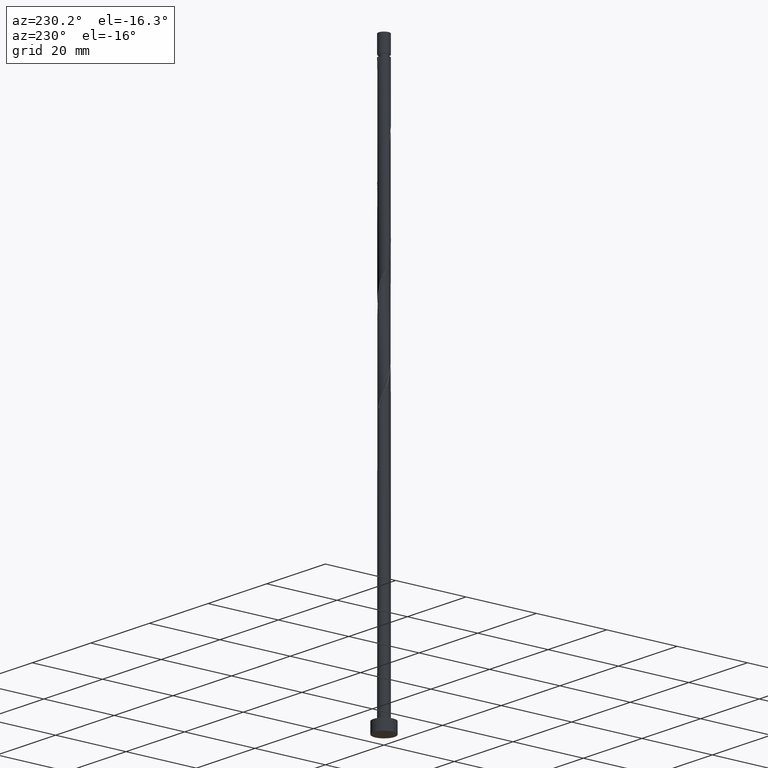
[diagram: clean part render]
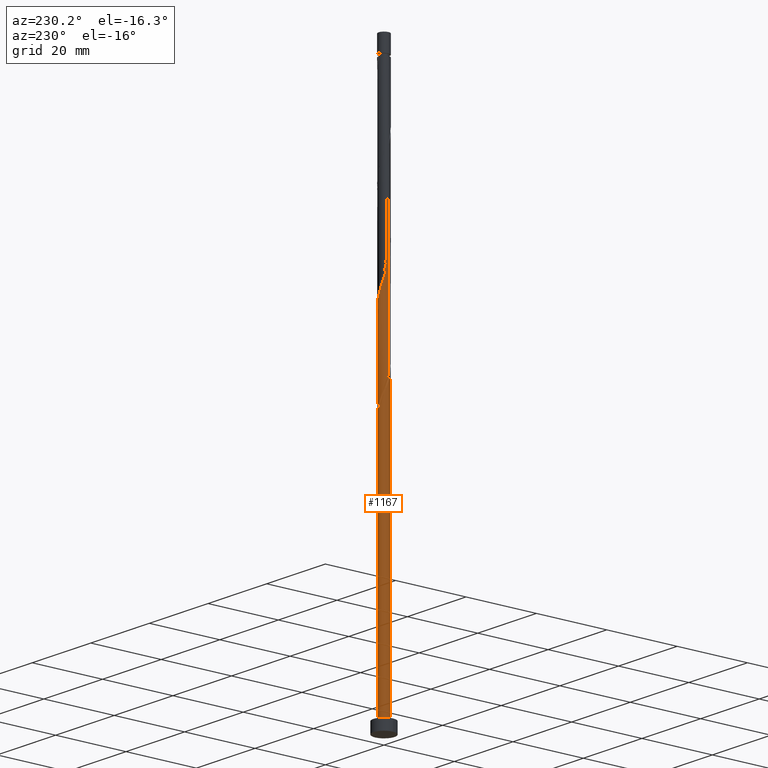
[diagram: same view with one face highlighted and labeled with its STEP entity id]
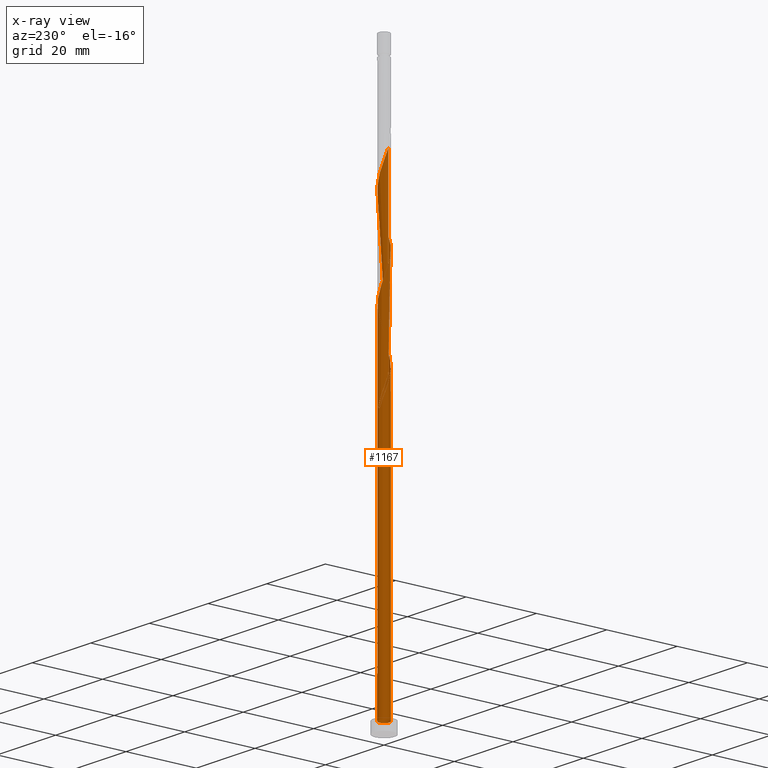
[diagram: x-ray of the same camera — body ghosted, the highlighted face saturated]
A machine part, auxiliary view. The second image highlights one B-rep face of the part: STEP entity #1167.
The next image is the same camera in x-ray: the body ghosted, the highlighted face saturated — about 0% of this face is hidden behind the body in this view.
In plain terms, the highlighted cylindrical surface (bore or boss wall) has radius 1.5 mm, axis along (-0, -0, -1).
Its self-contained STEP definition (entity closure, byte-faithful):
#9 = CARTESIAN_POINT ( 'NONE',  ( -1.045853010636306202, 1.075263446855226235, 129.7995311328476191 ) ) ;
#18 = CARTESIAN_POINT ( 'NONE',  ( 1.200452554620305756, -0.9248924852164310817, 117.0722584055748570 ) ) ;
#33 = CARTESIAN_POINT ( 'NONE',  ( -1.200452554620305978, 0.9248924852164310817, 130.4055917389081856 ) ) ;
#40 = CARTESIAN_POINT ( 'NONE',  ( -1.045853010636306202, 1.075263446855226235, 103.1328644661809477 ) ) ;
#67 = CARTESIAN_POINT ( 'NONE',  ( -0.7446362021362263883, -1.319859602977673019, 84.34498567830213744 ) ) ;
#74 = ORIENTED_EDGE ( 'NONE', *, *, #141, .F. ) ;
#75 = CARTESIAN_POINT ( 'NONE',  ( -1.213159217434436110, -0.8821817914431666630, 82.52680386012033864 ) ) ;
#80 = CARTESIAN_POINT ( 'NONE',  ( 0.2984962311319869221, 1.469999999999999751, 74.04195537527185422 ) ) ;
#82 = CARTESIAN_POINT ( 'NONE',  ( 0.8912534666523075355, -1.225634408494020722, 89.19347052678701004 ) ) ;
#90 = CARTESIAN_POINT ( 'NONE',  ( 1.461158848907852859, -0.3391383467823813058, 92.22377355709002700 ) ) ;
#99 = VERTEX_POINT ( 'NONE', #395 ) ;
#110 = ORIENTED_EDGE ( 'NONE', *, *, #1036, .F. ) ;
#117 = LINE ( 'NONE', #428, #1321 ) ;
#123 = VERTEX_POINT ( 'NONE', #167 ) ;
#129 = CARTESIAN_POINT ( 'NONE',  ( 1.412398115979206503, -0.5492212733340109398, 118.2843796176960893 ) ) ;
#141 = EDGE_CURVE ( 'NONE', #123, #99, #678, .T. ) ;
#145 = CARTESIAN_POINT ( 'NONE',  ( 1.045853010636306202, -1.075263446855226235, 116.4661977995142621 ) ) ;
#153 = EDGE_LOOP ( 'NONE', ( #1318, #510, #1326, #381, #1444, #110, #74, #1538, #1129 ) ) ;
#167 = CARTESIAN_POINT ( 'NONE',  ( -0.2984962311319864225, 1.470000000000002416, 74.04195537527185422 ) ) ;
#180 = CARTESIAN_POINT ( 'NONE',  ( -0.9154784133017651593, 1.188233678523918035, 77.67831901163546604 ) ) ;
#183 = CARTESIAN_POINT ( 'NONE',  ( 0.3426257832300796946, 1.476184276359228109, 98.89044022375669840 ) ) ;
#190 = CARTESIAN_POINT ( 'NONE',  ( 1.509919581836498992, -0.1290554202307514498, 92.82983416315063607 ) ) ;
#194 = EDGE_CURVE ( 'NONE', #862, #279, #494, .T. ) ;
#230 = CARTESIAN_POINT ( 'NONE',  ( -1.412557076706239645, -0.5046607821568167562, 81.31468264799914891 ) ) ;
#234 = CARTESIAN_POINT ( 'NONE',  ( -1.500000000000000222, 0.000000000000000000, 159.5000000000000000 ) ) ;
#240 = CARTESIAN_POINT ( 'NONE',  ( -0.5098503233045978966, 1.427082721123916098, 127.9813493146658203 ) ) ;
#247 = CARTESIAN_POINT ( 'NONE',  ( 1.497517962423707383, 0.08625515763335768471, 120.1025614358779166 ) ) ;
#255 = CARTESIAN_POINT ( 'NONE',  ( 1.412557076706239645, 0.5046607821568165342, 121.3146826479991347 ) ) ;
#262 = CARTESIAN_POINT ( 'NONE',  ( 1.485116343010915330, 0.3015657354974667359, 120.7086220419385114 ) ) ;
#279 = VERTEX_POINT ( 'NONE', #80 ) ;
#297 = CARTESIAN_POINT ( 'NONE',  ( 1.213159217434436110, 0.8821817914431661078, 95.86013719345366724 ) ) ;
#298 = CARTESIAN_POINT ( 'NONE',  ( 0.000000000000000000, 0.000000000000000000, 74.04195537527185422 ) ) ;
#301 = CARTESIAN_POINT ( 'NONE',  ( -1.497517962423704718, 0.08625515763335817043, 81.31468264799907786 ) ) ;
#304 = CARTESIAN_POINT ( 'NONE',  ( 0.5436309926831531802, 1.398021939668451008, 98.28437961769610354 ) ) ;
#312 = CARTESIAN_POINT ( 'NONE',  ( -0.1277418221353519845, -1.494550777617658754, 86.16316749648400730 ) ) ;
#320 = CARTESIAN_POINT ( 'NONE',  ( 1.485116343010915330, 0.3015657354974667359, 94.04195537527184001 ) ) ;
#329 = DIRECTION ( 'NONE',  ( -0.000000000000000000, -0.000000000000000000, -1.000000000000000000 ) ) ;
#356 = CARTESIAN_POINT ( 'NONE',  ( 0.2984962311319867556, -1.470000000000002416, 114.0419553752718684 ) ) ;
#364 = CARTESIAN_POINT ( 'NONE',  ( 1.213159217434436110, 0.8821817914431661078, 122.5268038601203244 ) ) ;
#370 = CARTESIAN_POINT ( 'NONE',  ( 0.9154784133017670467, 1.188233678523920034, 123.7389250722415710 ) ) ;
#375 = EDGE_CURVE ( 'NONE', #1361, #719, #577, .T. ) ;
#379 = CARTESIAN_POINT ( 'NONE',  ( -1.086320624467308038, -1.056607754070166383, 109.7995311328475907 ) ) ;
#381 = ORIENTED_EDGE ( 'NONE', *, *, #823, .T. ) ;
#386 = CARTESIAN_POINT ( 'NONE',  ( 0.08714213895937560073, -1.512917278876088512, 113.4358947692112594 ) ) ;
#395 = CARTESIAN_POINT ( 'NONE',  ( -1.500000000000002442, -1.316200221907664786E-15, 79.85916756263762295 ) ) ;
#409 = CARTESIAN_POINT ( 'NONE',  ( 1.200452554620305756, -0.9248924852164310817, 90.40559173890818556 ) ) ;
#414 = CARTESIAN_POINT ( 'NONE',  ( -0.7446362021362251671, 1.319859602977671020, 77.07225840557492802 ) ) ;
#417 = CARTESIAN_POINT ( 'NONE',  ( 0.1277418221353521510, 1.494550777617658754, 99.49650082981733590 ) ) ;
#418 = DIRECTION ( 'NONE',  ( 0.000000000000000000, -0.000000000000000000, -1.000000000000000000 ) ) ;
#419 = AXIS2_PLACEMENT_3D ( 'NONE', #298, #418, #1275 ) ;
#425 = AXIS2_PLACEMENT_3D ( 'NONE', #1163, #1029, #828 ) ;
#428 = CARTESIAN_POINT ( 'NONE',  ( -1.500000000000000222, 0.000000000000000000, 159.5000000000000000 ) ) ;
#447 = FACE_OUTER_BOUND ( 'NONE', #153, .T. ) ;
#472 = CARTESIAN_POINT ( 'NONE',  ( -1.500000000000002887, 0.1717933910776834605, 132.7065409429996237 ) ) ;
#481 = CARTESIAN_POINT ( 'NONE',  ( -1.412398115979205837, 0.5492212733340116060, 104.9510462843627607 ) ) ;
#490 = CARTESIAN_POINT ( 'NONE',  ( -0.7005518949784527161, 1.326358564808968188, 101.9207432540597580 ) ) ;
#494 =( BOUNDED_CURVE ( )  B_SPLINE_CURVE ( 2, ( #784, #1161, #301, #535, #1264, #666, #925, #1258, #180, #414, #900, #1151, #1375, #802, #917 ),
 .UNSPECIFIED., .F., .T. ) 
 B_SPLINE_CURVE_WITH_KNOTS ( ( 3, 2, 2, 2, 2, 2, 2, 3 ),
 ( 0.9295252162417513286, 0.9318181818181817677, 0.9431818181818182323, 0.9545454545454545858, 0.9659090909090909394, 0.9772727272727272929, 0.9886363636363636465, 1.000000000000000000 ),
 .UNSPECIFIED. ) 
 CURVE ( )  GEOMETRIC_REPRESENTATION_ITEM ( )  RATIONAL_B_SPLINE_CURVE ( ( 0.9061101570135671190, 0.9072237824201493384, 0.9090909090909268242, 0.8998376744372288405, 0.9090909090909268242, 0.8998376744372288405, 0.9090909090909268242, 0.8998376744372288405, 0.9090909090909268242, 0.8998376744372288405, 0.9090909090909268242, 0.8998376744372288405, 0.9090909090909268242, 0.8998376744372288405, 0.9090909090909268242 ) ) 
 REPRESENTATION_ITEM ( '' )  );
#497 = CARTESIAN_POINT ( 'NONE',  ( -1.497517962423707383, -0.08625515763335786512, 106.7692281025445737 ) ) ;
#507 = CARTESIAN_POINT ( 'NONE',  ( -1.461158848907852637, 0.3391383467823815279, 105.5571068904233556 ) ) ;
#510 = ORIENTED_EDGE ( 'NONE', *, *, #1235, .F. ) ;
#522 = CARTESIAN_POINT ( 'NONE',  ( -0.7005518949784527161, 1.326358564808968188, 75.25407658739307237 ) ) ;
#524 = CIRCLE ( 'NONE', #419, 1.500000000000000222 ) ;
#531 = CARTESIAN_POINT ( 'NONE',  ( -0.3426257832300795281, -1.476184276359228109, 85.55710689042335559 ) ) ;
#535 = CARTESIAN_POINT ( 'NONE',  ( -1.485116343010913109, 0.3015657354974668469, 80.70862204193851142 ) ) ;
#552 = CARTESIAN_POINT ( 'NONE',  ( -1.500000000000003775, 0.1717933910776812956, 79.37320760966635191 ) ) ;
#554 = CARTESIAN_POINT ( 'NONE',  ( 0.2984962311319867556, -1.470000000000002416, 87.37528870860521124 ) ) ;
#570 = CARTESIAN_POINT ( 'NONE',  ( 0.000000000000000000, 0.000000000000000000, 3.000000000000000000 ) ) ;
#577 = CIRCLE ( 'NONE', #1460, 1.500000000000000222 ) ;
#596 = CARTESIAN_POINT ( 'NONE',  ( -0.5098503233045978966, 1.427082721123916098, 101.3146826479991205 ) ) ;
#611 = CARTESIAN_POINT ( 'NONE',  ( 0.1277418221353521510, 1.494550777617658754, 126.1631674964840073 ) ) ;
#618 = CARTESIAN_POINT ( 'NONE',  ( 1.339997810401563738, 0.7077558288161661659, 121.9207432540597296 ) ) ;
#635 = CARTESIAN_POINT ( 'NONE',  ( -0.2984962311319864225, 1.470000000000002416, 74.04195537527185422 ) ) ;
#644 = CIRCLE ( 'NONE', #953, 1.500000000000000222 ) ;
#654 = EDGE_CURVE ( 'NONE', #123, #279, #524, .T. ) ;
#666 = CARTESIAN_POINT ( 'NONE',  ( -1.339997810401561518, 0.7077558288161657218, 79.49650082981733590 ) ) ;
#668 = CARTESIAN_POINT ( 'NONE',  ( -0.5436309926831534023, -1.398021939668451008, 84.95104628436274652 ) ) ;
#678 =( BOUNDED_CURVE ( )  B_SPLINE_CURVE ( 2, ( #635, #1121, #522, #883, #1044, #777, #1498, #1507, #685, #552, #1168 ),
 .UNSPECIFIED., .F., .T. ) 
 B_SPLINE_CURVE_WITH_KNOTS ( ( 3, 2, 2, 2, 2, 3 ),
 ( 0.000000000000000000, 0.01136363636363635181, 0.02272727272727270362, 0.03409090909090906063, 0.04545454545454540723, 0.05452521624175146742 ),
 .UNSPECIFIED. ) 
 CURVE ( )  GEOMETRIC_REPRESENTATION_ITEM ( )  RATIONAL_B_SPLINE_CURVE ( ( 0.9090909090909334855, 0.8998376744372357239, 0.9090909090909334855, 0.8998376744372357239, 0.9090909090909334855, 0.8998376744372357239, 0.9090909090909334855, 0.8998376744372357239, 0.9090909090909334855, 0.9017048011080130987, 0.9061101570135740024 ) ) 
 REPRESENTATION_ITEM ( '' )  );
#685 = CARTESIAN_POINT ( 'NONE',  ( -1.461158848907852637, 0.3391383467823815279, 78.89044022375669840 ) ) ;
#706 = CARTESIAN_POINT ( 'NONE',  ( -0.8912534666523073135, 1.225634408494020944, 129.1934705267869674 ) ) ;
#717 = CARTESIAN_POINT ( 'NONE',  ( -0.8912534666523073135, 1.225634408494020944, 102.5268038601203386 ) ) ;
#719 = VERTEX_POINT ( 'NONE', #1391 ) ;
#725 = CARTESIAN_POINT ( 'NONE',  ( -0.7005518949784527161, 1.326358564808968188, 128.5874099207264294 ) ) ;
#734 = CARTESIAN_POINT ( 'NONE',  ( -1.412557076706239645, -0.5046607821568167562, 107.9813493146658061 ) ) ;
#756 = VERTEX_POINT ( 'NONE', #1171 ) ;
#767 = CARTESIAN_POINT ( 'NONE',  ( 1.500000000000000222, 0.000000000000000000, 3.000000000000000000 ) ) ;
#777 = CARTESIAN_POINT ( 'NONE',  ( -1.200452554620305978, 0.9248924852164310817, 77.07225840557489960 ) ) ;
#779 = CARTESIAN_POINT ( 'NONE',  ( -0.2984962311319864781, 1.470000000000002416, 100.7086220419385540 ) ) ;
#784 = CARTESIAN_POINT ( 'NONE',  ( -1.500000000000000444, 1.757426432660816093E-15, 81.55807652123938567 ) ) ;
#787 = CARTESIAN_POINT ( 'NONE',  ( -1.086320624467308038, -1.056607754070166383, 83.13286446618094772 ) ) ;
#795 = CARTESIAN_POINT ( 'NONE',  ( 1.339997810401563738, 0.7077558288161661659, 95.25407658739305816 ) ) ;
#802 = CARTESIAN_POINT ( 'NONE',  ( 0.08714213895937576726, 1.512917278876086069, 74.64801598133246330 ) ) ;
#823 = EDGE_CURVE ( 'NONE', #719, #1361, #644, .T. ) ;
#828 = DIRECTION ( 'NONE',  ( -1.000000000000000000, 0.000000000000000000, 0.000000000000000000 ) ) ;
#834 = LINE ( 'NONE', #234, #1125 ) ;
#839 = CARTESIAN_POINT ( 'NONE',  ( -1.213159217434436110, -0.8821817914431666630, 109.1934705267870100 ) ) ;
#847 = CARTESIAN_POINT ( 'NONE',  ( 1.086320624467308482, 1.056607754070166161, 123.1328644661809051 ) ) ;
#853 = CARTESIAN_POINT ( 'NONE',  ( -1.509919581836498992, 0.1290554202307515330, 106.1631674964839505 ) ) ;
#860 = CARTESIAN_POINT ( 'NONE',  ( -1.412398115979205837, 0.5492212733340116060, 131.6177129510294321 ) ) ;
#862 = VERTEX_POINT ( 'NONE', #1176 ) ;
#866 = DIRECTION ( 'NONE',  ( 0.000000000000000000, 0.000000000000000000, 1.000000000000000000 ) ) ;
#867 = CARTESIAN_POINT ( 'NONE',  ( 1.461158848907852859, -0.3391383467823813058, 118.8904402237566984 ) ) ;
#883 = CARTESIAN_POINT ( 'NONE',  ( -0.8912534666523073135, 1.225634408494020944, 75.86013719345366724 ) ) ;
#894 = CARTESIAN_POINT ( 'NONE',  ( 1.306425335299755464, -0.7370568792752213438, 91.01165234496880885 ) ) ;
#897 = DIRECTION ( 'NONE',  ( 1.000000000000000000, 0.000000000000000000, 0.000000000000000000 ) ) ;
#900 = CARTESIAN_POINT ( 'NONE',  ( -0.5436309926831520700, 1.398021939668448566, 76.46619779951424789 ) ) ;
#902 = CARTESIAN_POINT ( 'NONE',  ( -0.08714213895937542032, 1.512917278876088512, 100.1025614358779023 ) ) ;
#911 = CARTESIAN_POINT ( 'NONE',  ( -1.339997810401563294, -0.7077558288161666100, 81.92074325405971535 ) ) ;
#917 = CARTESIAN_POINT ( 'NONE',  ( 0.2984962311319869221, 1.469999999999999751, 74.04195537527185422 ) ) ;
#925 = CARTESIAN_POINT ( 'NONE',  ( -1.213159217434433668, 0.8821817914431653307, 78.89044022375666998 ) ) ;
#953 = AXIS2_PLACEMENT_3D ( 'NONE', #570, #1053, #1420 ) ;
#963 = CARTESIAN_POINT ( 'NONE',  ( -1.306425335299755686, 0.7370568792752213438, 104.3449856783021517 ) ) ;
#971 = CARTESIAN_POINT ( 'NONE',  ( 0.5098503233045976746, -1.427082721123916320, 114.6480159813324491 ) ) ;
#977 =( BOUNDED_CURVE ( )  B_SPLINE_CURVE ( 2, ( #1490, #1146, #1131, #1406, #230, #911, #75, #787, #1266, #67, #668, #531, #312, #1518, #554, #1379, #1012, #82, #1397, #409, #894, #1153, #90, #190, #1021, #320, #1371, #795, #297, #1260, #1274, #1253, #304, #183, #417, #902, #779, #596, #490, #717, #40, #1081, #963, #481, #507, #853, #497, #1194, #734, #986, #839, #379, #1340, #1316, #1071, #1217, #1465, #386, #356, #971, #981, #1330, #145, #18, #1451, #129, #867, #1442, #247, #262, #255, #618, #364, #847, #370, #1324, #1106, #1209, #611, #1346, #1096, #240, #725, #706, #9, #33, #1458, #860, #1089, #472, #1202 ),
 .UNSPECIFIED., .F., .T. ) 
 B_SPLINE_CURVE_WITH_KNOTS ( ( 3, 2, 2, 2, 2, 2, 2, 2, 2, 2, 2, 2, 2, 2, 2, 2, 2, 2, 2, 2, 2, 2, 2, 2, 2, 2, 2, 2, 2, 2, 2, 2, 2, 2, 2, 2, 2, 2, 2, 2, 2, 2, 2, 2, 2, 3 ),
 ( 0.05452521624175146742, 0.05681818181818176772, 0.06818181818181823228, 0.07954545454545458583, 0.09090909090909093937, 0.1022727272727272929, 0.1136363636363636465, 0.1250000000000000000, 0.1363636363636363535, 0.1477272727272727071, 0.1590909090909090606, 0.1704545454545454142, 0.1818181818181817677, 0.1931818181818182323, 0.2045454545454545858, 0.2159090909090909394, 0.2272727272727272929, 0.2386363636363636465, 0.2500000000000000000, 0.2613636363636363535, 0.2727272727272727071, 0.2840909090909090606, 0.2954545454545454142, 0.3068181818181817677, 0.3181818181818182323, 0.3295454545454545858, 0.3409090909090909394, 0.3522727272727272929, 0.3636363636363636465, 0.3750000000000000000, 0.3863636363636363535, 0.3977272727272727071, 0.4090909090909090606, 0.4204545454545454142, 0.4318181818181817677, 0.4431818181818182323, 0.4545454545454545858, 0.4659090909090909394, 0.4772727272727272929, 0.4886363636363636465, 0.5000000000000000000, 0.5113636363636363535, 0.5227272727272727071, 0.5340909090909091717, 0.5454545454545454142, 0.5545252162417514397 ),
 .UNSPECIFIED. ) 
 CURVE ( )  GEOMETRIC_REPRESENTATION_ITEM ( )  RATIONAL_B_SPLINE_CURVE ( ( 0.9061101570135740024, 0.9072237824201561107, 0.9090909090909334855, 0.8998376744372357239, 0.9090909090909334855, 0.8998376744372357239, 0.9090909090909334855, 0.8998376744372357239, 0.9090909090909334855, 0.8998376744372357239, 0.9090909090909334855, 0.8998376744372357239, 0.9090909090909334855, 0.8998376744372357239, 0.9090909090909334855, 0.8998376744372357239, 0.9090909090909334855, 0.8998376744372357239, 0.9090909090909334855, 0.8998376744372357239, 0.9090909090909334855, 0.8998376744372357239, 0.9090909090909334855, 0.8998376744372357239, 0.9090909090909334855, 0.8998376744372357239, 0.9090909090909334855, 0.8998376744372357239, 0.9090909090909334855, 0.8998376744372357239, 0.9090909090909334855, 0.8998376744372357239, 0.9090909090909334855, 0.8998376744372357239, 0.9090909090909334855, 0.8998376744372357239, 0.9090909090909334855, 0.8998376744372357239, 0.9090909090909334855, 0.8998376744372357239, 0.9090909090909334855, 0.8998376744372357239, 0.9090909090909334855, 0.8998376744372357239, 0.9090909090909334855, 0.8998376744372357239, 0.9090909090909334855, 0.8998376744372357239, 0.9090909090909334855, 0.8998376744372357239, 0.9090909090909334855, 0.8998376744372357239, 0.9090909090909334855, 0.8998376744372357239, 0.9090909090909334855, 0.8998376744372357239, 0.9090909090909334855, 0.8998376744372357239, 0.9090909090909334855, 0.8998376744372357239, 0.9090909090909334855, 0.8998376744372357239, 0.9090909090909334855, 0.8998376744372357239, 0.9090909090909334855, 0.8998376744372357239, 0.9090909090909334855, 0.8998376744372357239, 0.9090909090909334855, 0.8998376744372357239, 0.9090909090909334855, 0.8998376744372357239, 0.9090909090909334855, 0.8998376744372357239, 0.9090909090909334855, 0.8998376744372357239, 0.9090909090909334855, 0.8998376744372357239, 0.9090909090909334855, 0.8998376744372357239, 0.9090909090909334855, 0.8998376744372357239, 0.9090909090909334855, 0.8998376744372357239, 0.9090909090909334855, 0.8998376744372357239, 0.9090909090909334855, 0.8998376744372357239, 0.9090909090909334855, 0.9017048011080132097, 0.9061101570135737804 ) ) 
 REPRESENTATION_ITEM ( '' )  );
#981 = CARTESIAN_POINT ( 'NONE',  ( 0.7005518949784523830, -1.326358564808968632, 115.2540765873930724 ) ) ;
#986 = CARTESIAN_POINT ( 'NONE',  ( -1.339997810401563294, -0.7077558288161666100, 108.5874099207263868 ) ) ;
#1012 = CARTESIAN_POINT ( 'NONE',  ( 0.7005518949784523830, -1.326358564808968632, 88.58740992072640097 ) ) ;
#1021 = CARTESIAN_POINT ( 'NONE',  ( 1.497517962423707383, 0.08625515763335768471, 93.43589476921124515 ) ) ;
#1029 = DIRECTION ( 'NONE',  ( -0.000000000000000000, -0.000000000000000000, -1.000000000000000000 ) ) ;
#1036 = EDGE_CURVE ( 'NONE', #99, #719, #834, .T. ) ;
#1044 = CARTESIAN_POINT ( 'NONE',  ( -1.045853010636306202, 1.075263446855226235, 76.46619779951426210 ) ) ;
#1053 = DIRECTION ( 'NONE',  ( 0.000000000000000000, 0.000000000000000000, 1.000000000000000000 ) ) ;
#1071 = CARTESIAN_POINT ( 'NONE',  ( -0.5436309926831534023, -1.398021939668451008, 111.6177129510294463 ) ) ;
#1081 = CARTESIAN_POINT ( 'NONE',  ( -1.200452554620305978, 0.9248924852164310817, 103.7389250722415568 ) ) ;
#1089 = CARTESIAN_POINT ( 'NONE',  ( -1.461158848907852637, 0.3391383467823815279, 132.2237735570900270 ) ) ;
#1096 = CARTESIAN_POINT ( 'NONE',  ( -0.2984962311319864781, 1.470000000000002416, 127.3752887086052112 ) ) ;
#1106 = CARTESIAN_POINT ( 'NONE',  ( 0.5436309926831531802, 1.398021939668451008, 124.9510462843627749 ) ) ;
#1121 = CARTESIAN_POINT ( 'NONE',  ( -0.5098503233045978966, 1.427082721123916098, 74.64801598133246330 ) ) ;
#1123 = EDGE_CURVE ( 'NONE', #756, #862, #117, .T. ) ;
#1125 = VECTOR ( 'NONE', #1414, 1000.000000000000000 ) ;
#1129 = ORIENTED_EDGE ( 'NONE', *, *, #194, .F. ) ;
#1131 = CARTESIAN_POINT ( 'NONE',  ( -1.497517962423707383, -0.08625515763335786512, 80.10256143587790234 ) ) ;
#1146 = CARTESIAN_POINT ( 'NONE',  ( -1.500000000000002220, -0.04316328978573709396, 79.98126556735581971 ) ) ;
#1151 = CARTESIAN_POINT ( 'NONE',  ( -0.3426257832300788064, 1.476184276359225889, 75.86013719345368145 ) ) ;
#1153 = CARTESIAN_POINT ( 'NONE',  ( 1.412398115979206503, -0.5492212733340109398, 91.61771295102940371 ) ) ;
#1161 = CARTESIAN_POINT ( 'NONE',  ( -1.500000000000000000, 0.04316328978573484576, 81.43597851652117470 ) ) ;
#1163 = CARTESIAN_POINT ( 'NONE',  ( 0.000000000000000000, 0.000000000000000000, 159.5000000000000000 ) ) ;
#1167 = ADVANCED_FACE ( 'NONE', ( #447 ), #1501, .T. ) ;
#1168 = CARTESIAN_POINT ( 'NONE',  ( -1.500000000000002442, -1.316200221907664786E-15, 79.85916756263762295 ) ) ;
#1171 = CARTESIAN_POINT ( 'NONE',  ( -1.500000000000002442, 7.702762662300539942E-16, 133.1925008959709942 ) ) ;
#1176 = CARTESIAN_POINT ( 'NONE',  ( -1.500000000000000444, 1.757426432660816093E-15, 81.55807652123938567 ) ) ;
#1194 = CARTESIAN_POINT ( 'NONE',  ( -1.485116343010915330, -0.3015657354974669024, 107.3752887086051970 ) ) ;
#1202 = CARTESIAN_POINT ( 'NONE',  ( -1.500000000000002442, 7.702762662300539942E-16, 133.1925008959709942 ) ) ;
#1209 = CARTESIAN_POINT ( 'NONE',  ( 0.3426257832300796946, 1.476184276359228109, 125.5571068904233698 ) ) ;
#1217 = CARTESIAN_POINT ( 'NONE',  ( -0.3426257832300795281, -1.476184276359228109, 112.2237735570900270 ) ) ;
#1235 = EDGE_CURVE ( 'NONE', #99, #756, #977, .T. ) ;
#1246 = CARTESIAN_POINT ( 'NONE',  ( 0.000000000000000000, 0.000000000000000000, 3.000000000000000000 ) ) ;
#1253 = CARTESIAN_POINT ( 'NONE',  ( 0.7446362021362260553, 1.319859602977673019, 97.67831901163548025 ) ) ;
#1258 = CARTESIAN_POINT ( 'NONE',  ( -1.086320624467306040, 1.056607754070165717, 78.28437961769608933 ) ) ;
#1260 = CARTESIAN_POINT ( 'NONE',  ( 1.086320624467308482, 1.056607754070166161, 96.46619779951426210 ) ) ;
#1264 = CARTESIAN_POINT ( 'NONE',  ( -1.412557076706236980, 0.5046607821568160901, 80.10256143587790234 ) ) ;
#1266 = CARTESIAN_POINT ( 'NONE',  ( -0.9154784133017672687, -1.188233678523920034, 83.73892507224155679 ) ) ;
#1274 = CARTESIAN_POINT ( 'NONE',  ( 0.9154784133017670467, 1.188233678523920034, 97.07225840557488539 ) ) ;
#1275 = DIRECTION ( 'NONE',  ( -1.000000000000000000, 0.000000000000000000, 0.000000000000000000 ) ) ;
#1316 = CARTESIAN_POINT ( 'NONE',  ( -0.7446362021362263883, -1.319859602977673019, 111.0116523449687946 ) ) ;
#1318 = ORIENTED_EDGE ( 'NONE', *, *, #1123, .F. ) ;
#1321 = VECTOR ( 'NONE', #329, 1000.000000000000000 ) ;
#1324 = CARTESIAN_POINT ( 'NONE',  ( 0.7446362021362260553, 1.319859602977673019, 124.3449856783021374 ) ) ;
#1326 = ORIENTED_EDGE ( 'NONE', *, *, #1036, .T. ) ;
#1330 = CARTESIAN_POINT ( 'NONE',  ( 0.8912534666523075355, -1.225634408494020722, 115.8601371934536672 ) ) ;
#1340 = CARTESIAN_POINT ( 'NONE',  ( -0.9154784133017672687, -1.188233678523920034, 110.4055917389082282 ) ) ;
#1346 = CARTESIAN_POINT ( 'NONE',  ( -0.08714213895937542032, 1.512917278876088512, 126.7692281025445737 ) ) ;
#1361 = VERTEX_POINT ( 'NONE', #767 ) ;
#1371 = CARTESIAN_POINT ( 'NONE',  ( 1.412557076706239645, 0.5046607821568165342, 94.64801598133247751 ) ) ;
#1375 = CARTESIAN_POINT ( 'NONE',  ( -0.1277418221353515404, 1.494550777617655868, 75.25407658739305816 ) ) ;
#1379 = CARTESIAN_POINT ( 'NONE',  ( 0.5098503233045976746, -1.427082721123916320, 87.98134931466580611 ) ) ;
#1391 = CARTESIAN_POINT ( 'NONE',  ( -1.500000000000000222, 0.000000000000000000, 3.000000000000000000 ) ) ;
#1397 = CARTESIAN_POINT ( 'NONE',  ( 1.045853010636306202, -1.075263446855226235, 89.79953113284760491 ) ) ;
#1406 = CARTESIAN_POINT ( 'NONE',  ( -1.485116343010915330, -0.3015657354974669024, 80.70862204193852563 ) ) ;
#1414 = DIRECTION ( 'NONE',  ( -0.000000000000000000, -0.000000000000000000, -1.000000000000000000 ) ) ;
#1420 = DIRECTION ( 'NONE',  ( 1.000000000000000000, 0.000000000000000000, 0.000000000000000000 ) ) ;
#1442 = CARTESIAN_POINT ( 'NONE',  ( 1.509919581836498992, -0.1290554202307514498, 119.4965008298172791 ) ) ;
#1444 = ORIENTED_EDGE ( 'NONE', *, *, #375, .T. ) ;
#1451 = CARTESIAN_POINT ( 'NONE',  ( 1.306425335299755464, -0.7370568792752213438, 117.6783190116355229 ) ) ;
#1458 = CARTESIAN_POINT ( 'NONE',  ( -1.306425335299755686, 0.7370568792752213438, 131.0116523449688373 ) ) ;
#1460 = AXIS2_PLACEMENT_3D ( 'NONE', #1246, #866, #897 ) ;
#1465 = CARTESIAN_POINT ( 'NONE',  ( -0.1277418221353519845, -1.494550777617658754, 112.8298341631506645 ) ) ;
#1490 = CARTESIAN_POINT ( 'NONE',  ( -1.500000000000002442, -1.316200221907664786E-15, 79.85916756263762295 ) ) ;
#1498 = CARTESIAN_POINT ( 'NONE',  ( -1.306425335299755686, 0.7370568792752213438, 77.67831901163548025 ) ) ;
#1501 = CYLINDRICAL_SURFACE ( 'NONE', #425, 1.500000000000000222 ) ;
#1507 = CARTESIAN_POINT ( 'NONE',  ( -1.412398115979205837, 0.5492212733340116060, 78.28437961769607512 ) ) ;
#1518 = CARTESIAN_POINT ( 'NONE',  ( 0.08714213895937560073, -1.512917278876088512, 86.76922810254458795 ) ) ;
#1538 = ORIENTED_EDGE ( 'NONE', *, *, #654, .T. ) ;